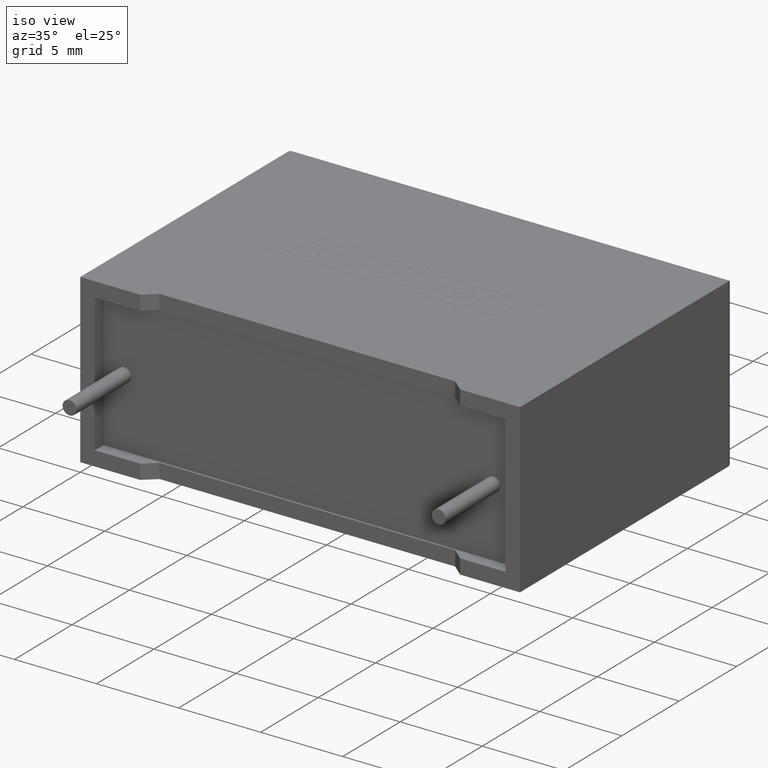
[diagram: clean part render]
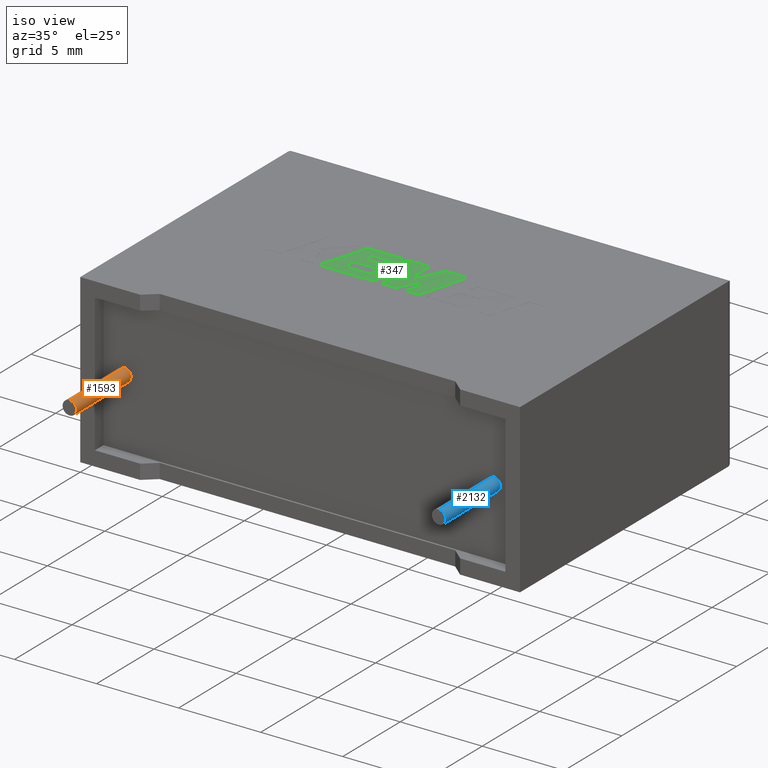
[diagram: same view with three faces highlighted in distinct colors, each labeled with its STEP entity id]
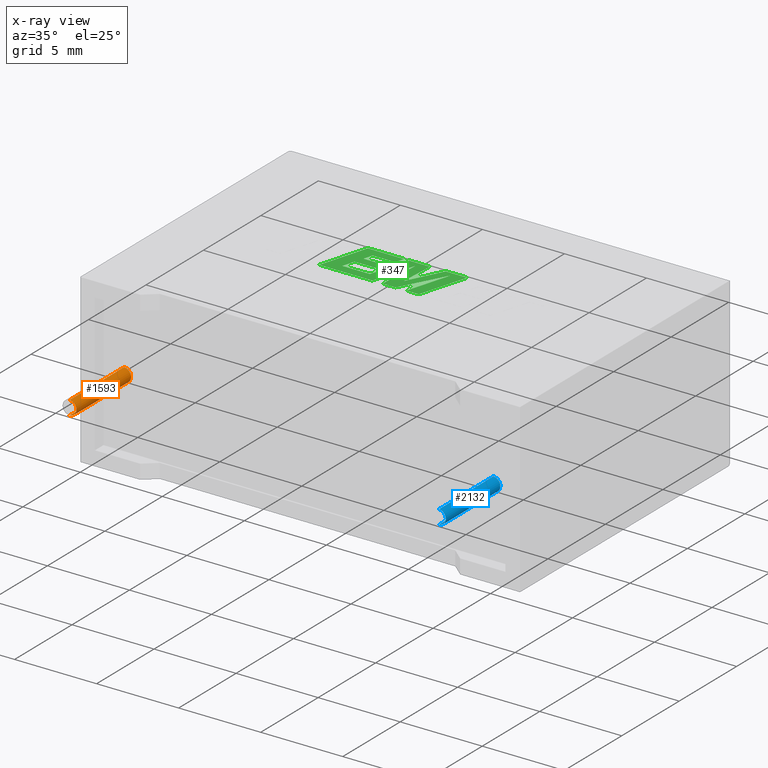
[diagram: x-ray of the same camera — body ghosted, the three highlighted faces saturated]
A machine part, iso view with three faces highlighted in distinct colors.
The next image is the same camera in x-ray (body ghosted, the three faces saturated) — at least one of them is partly hidden behind the body in this view.
Their STEP definitions:

[orange] entity #1593 — the highlighted cylindrical surface (edge-blend (fillet) strip) has radius 0.425 mm, axis along (-0, 1, -0).
#33 = DIRECTION ( 'NONE',  ( 0.000000000000000000, -1.000000000000000000, 0.000000000000000000 ) ) ;
#159 = DIRECTION ( 'NONE',  ( -0.000000000000000000, 1.000000000000000000, -0.000000000000000000 ) ) ;
#412 = ORIENTED_EDGE ( 'NONE', *, *, #3022, .F. ) ;
#452 = VERTEX_POINT ( 'NONE', #630 ) ;
#508 = FACE_OUTER_BOUND ( 'NONE', #2906, .T. ) ;
#549 = VECTOR ( 'NONE', #159, 1000.000000000000000 ) ;
#630 = CARTESIAN_POINT ( 'NONE',  ( 2.150000000000000799, -4.000000000000000000, 5.524999999999999467 ) ) ;
#723 = DIRECTION ( 'NONE',  ( 0.000000000000000000, 0.000000000000000000, 1.000000000000000000 ) ) ;
#1239 = AXIS2_PLACEMENT_3D ( 'NONE', #2360, #1356, #3040 ) ;
#1305 = CARTESIAN_POINT ( 'NONE',  ( 2.150000000000000799, -4.000000000000000000, 4.674999999999999822 ) ) ;
#1356 = DIRECTION ( 'NONE',  ( 0.000000000000000000, -1.000000000000000000, 0.000000000000000000 ) ) ;
#1424 = EDGE_CURVE ( 'NONE', #1831, #452, #2837, .T. ) ;
#1459 = DIRECTION ( 'NONE',  ( -0.000000000000000000, 1.000000000000000000, -0.000000000000000000 ) ) ;
#1593 = ADVANCED_FACE ( 'NONE', ( #508 ), #1939, .T. ) ;
#1703 = CARTESIAN_POINT ( 'NONE',  ( 2.150000000000000799, -4.000000000000000000, 5.099999999999999645 ) ) ;
#1704 = LINE ( 'NONE', #2873, #2448 ) ;
#1829 = CARTESIAN_POINT ( 'NONE',  ( 2.150000000000000799, 0.7500000000000000000, 5.524999999999999467 ) ) ;
#1831 = VERTEX_POINT ( 'NONE', #1305 ) ;
#1884 = VERTEX_POINT ( 'NONE', #1829 ) ;
#1911 = DIRECTION ( 'NONE',  ( -0.000000000000000000, 1.000000000000000000, -0.000000000000000000 ) ) ;
#1939 = CYLINDRICAL_SURFACE ( 'NONE', #2942, 0.4250000000000000444 ) ;
#2118 = CARTESIAN_POINT ( 'NONE',  ( 2.150000000000000799, 0.7500000000000000000, 4.674999999999999822 ) ) ;
#2157 = AXIS2_PLACEMENT_3D ( 'NONE', #2369, #33, #2622 ) ;
#2213 = ORIENTED_EDGE ( 'NONE', *, *, #1424, .F. ) ;
#2273 = ORIENTED_EDGE ( 'NONE', *, *, #2640, .T. ) ;
#2322 = EDGE_CURVE ( 'NONE', #1831, #2651, #1704, .T. ) ;
#2331 = CARTESIAN_POINT ( 'NONE',  ( 2.150000000000000799, -4.000000000000000000, 5.524999999999999467 ) ) ;
#2360 = CARTESIAN_POINT ( 'NONE',  ( 2.150000000000000799, -4.000000000000000000, 5.099999999999999645 ) ) ;
#2369 = CARTESIAN_POINT ( 'NONE',  ( 2.150000000000000799, 0.7500000000000000000, 5.099999999999999645 ) ) ;
#2448 = VECTOR ( 'NONE', #1459, 1000.000000000000000 ) ;
#2622 = DIRECTION ( 'NONE',  ( 0.000000000000000000, 0.000000000000000000, -1.000000000000000000 ) ) ;
#2640 = EDGE_CURVE ( 'NONE', #2651, #1884, #2896, .T. ) ;
#2651 = VERTEX_POINT ( 'NONE', #2118 ) ;
#2772 = ORIENTED_EDGE ( 'NONE', *, *, #2322, .T. ) ;
#2809 = LINE ( 'NONE', #2331, #549 ) ;
#2837 = CIRCLE ( 'NONE', #1239, 0.4250000000000000444 ) ;
#2873 = CARTESIAN_POINT ( 'NONE',  ( 2.150000000000000799, -4.000000000000000000, 4.674999999999999822 ) ) ;
#2896 = CIRCLE ( 'NONE', #2157, 0.4250000000000000444 ) ;
#2906 = EDGE_LOOP ( 'NONE', ( #2213, #2772, #2273, #412 ) ) ;
#2942 = AXIS2_PLACEMENT_3D ( 'NONE', #1703, #1911, #723 ) ;
#3022 = EDGE_CURVE ( 'NONE', #452, #1884, #2809, .T. ) ;
#3040 = DIRECTION ( 'NONE',  ( 0.000000000000000000, 0.000000000000000000, -1.000000000000000000 ) ) ;

[blue] entity #2132 — the highlighted cylindrical surface (edge-blend (fillet) strip) has radius 0.425 mm, axis along (-0, 1, -0).
#22 = DIRECTION ( 'NONE',  ( 0.000000000000000000, -1.000000000000000000, -0.000000000000000000 ) ) ;
#110 = FACE_OUTER_BOUND ( 'NONE', #504, .T. ) ;
#113 = DIRECTION ( 'NONE',  ( 0.000000000000000000, 0.000000000000000000, -1.000000000000000000 ) ) ;
#131 = CARTESIAN_POINT ( 'NONE',  ( 24.64999999999999858, -4.000000000000000000, 4.674999999999999822 ) ) ;
#185 = ORIENTED_EDGE ( 'NONE', *, *, #1785, .F. ) ;
#230 = EDGE_CURVE ( 'NONE', #1982, #2728, #2500, .T. ) ;
#319 = AXIS2_PLACEMENT_3D ( 'NONE', #2972, #380, #334 ) ;
#334 = DIRECTION ( 'NONE',  ( 0.000000000000000000, 0.000000000000000000, 1.000000000000000000 ) ) ;
#380 = DIRECTION ( 'NONE',  ( -0.000000000000000000, 1.000000000000000000, -0.000000000000000000 ) ) ;
#404 = EDGE_CURVE ( 'NONE', #1754, #1982, #1859, .T. ) ;
#438 = CARTESIAN_POINT ( 'NONE',  ( 24.64999999999999858, -4.000000000000000000, 4.674999999999999822 ) ) ;
#504 = EDGE_LOOP ( 'NONE', ( #575, #818, #1268, #185 ) ) ;
#533 = CARTESIAN_POINT ( 'NONE',  ( 24.64999999999999858, 0.7499999999999997780, 5.524999999999999467 ) ) ;
#542 = CARTESIAN_POINT ( 'NONE',  ( 24.64999999999999858, -4.000000000000000000, 5.524999999999999467 ) ) ;
#575 = ORIENTED_EDGE ( 'NONE', *, *, #1254, .T. ) ;
#590 = LINE ( 'NONE', #1520, #1344 ) ;
#680 = DIRECTION ( 'NONE',  ( -0.000000000000000000, 1.000000000000000000, -0.000000000000000000 ) ) ;
#818 = ORIENTED_EDGE ( 'NONE', *, *, #404, .T. ) ;
#1178 = DIRECTION ( 'NONE',  ( 0.000000000000000000, 0.000000000000000000, -1.000000000000000000 ) ) ;
#1187 = AXIS2_PLACEMENT_3D ( 'NONE', #1757, #1257, #113 ) ;
#1233 = VERTEX_POINT ( 'NONE', #542 ) ;
#1254 = EDGE_CURVE ( 'NONE', #1233, #1754, #2740, .T. ) ;
#1257 = DIRECTION ( 'NONE',  ( -0.000000000000000000, 1.000000000000000000, -0.000000000000000000 ) ) ;
#1268 = ORIENTED_EDGE ( 'NONE', *, *, #230, .T. ) ;
#1344 = VECTOR ( 'NONE', #1981, 1000.000000000000000 ) ;
#1520 = CARTESIAN_POINT ( 'NONE',  ( 24.64999999999999858, -4.000000000000000000, 5.524999999999999467 ) ) ;
#1591 = AXIS2_PLACEMENT_3D ( 'NONE', #1670, #22, #1178 ) ;
#1670 = CARTESIAN_POINT ( 'NONE',  ( 24.64999999999999858, 0.7499999999999997780, 5.099999999999999645 ) ) ;
#1671 = CARTESIAN_POINT ( 'NONE',  ( 24.64999999999999858, 0.7499999999999997780, 4.674999999999999822 ) ) ;
#1754 = VERTEX_POINT ( 'NONE', #131 ) ;
#1757 = CARTESIAN_POINT ( 'NONE',  ( 24.64999999999999858, -4.000000000000000000, 5.099999999999999645 ) ) ;
#1785 = EDGE_CURVE ( 'NONE', #1233, #2728, #590, .T. ) ;
#1859 = LINE ( 'NONE', #438, #2952 ) ;
#1981 = DIRECTION ( 'NONE',  ( -0.000000000000000000, 1.000000000000000000, -0.000000000000000000 ) ) ;
#1982 = VERTEX_POINT ( 'NONE', #1671 ) ;
#2132 = ADVANCED_FACE ( 'NONE', ( #110 ), #2507, .T. ) ;
#2500 = CIRCLE ( 'NONE', #1591, 0.4250000000000000444 ) ;
#2507 = CYLINDRICAL_SURFACE ( 'NONE', #319, 0.4250000000000000444 ) ;
#2728 = VERTEX_POINT ( 'NONE', #533 ) ;
#2740 = CIRCLE ( 'NONE', #1187, 0.4250000000000000444 ) ;
#2952 = VECTOR ( 'NONE', #680, 1000.000000000000000 ) ;
#2972 = CARTESIAN_POINT ( 'NONE',  ( 24.64999999999999858, -4.000000000000000000, 5.099999999999999645 ) ) ;

[green] entity #347 — the highlighted planar face has unit normal (0, 0, -1).
#14 = DIRECTION ( 'NONE',  ( 0.2740217765954066076, 0.9617234872620595842, 0.000000000000000000 ) ) ;
#31 = EDGE_CURVE ( 'NONE', #1238, #912, #2625, .T. ) ;
#36 = DIRECTION ( 'NONE',  ( 1.000000000000000000, 0.000000000000000000, 0.000000000000000000 ) ) ;
#50 = CARTESIAN_POINT ( 'NONE',  ( 8.961130512319888552, 8.003579999999905326, 10.20499999999999829 ) ) ;
#61 = CARTESIAN_POINT ( 'NONE',  ( 12.34199675988504730, 11.00540514629475375, 10.20499999999999829 ) ) ;
#72 = AXIS2_PLACEMENT_3D ( 'NONE', #2736, #1355, #861 ) ;
#101 = CARTESIAN_POINT ( 'NONE',  ( 11.64331543556821558, 8.574679054996249050, 10.20499999999999829 ) ) ;
#109 = VERTEX_POINT ( 'NONE', #2586 ) ;
#125 = LINE ( 'NONE', #1501, #213 ) ;
#169 = DIRECTION ( 'NONE',  ( 1.000000000000000000, 0.000000000000000000, 0.000000000000000000 ) ) ;
#177 = EDGE_CURVE ( 'NONE', #2766, #2807, #713, .T. ) ;
#186 = VERTEX_POINT ( 'NONE', #1560 ) ;
#194 = CARTESIAN_POINT ( 'NONE',  ( 15.03040653937304505, 10.68889560609894573, 10.20499999999999829 ) ) ;
#202 = ORIENTED_EDGE ( 'NONE', *, *, #2989, .T. ) ;
#213 = VECTOR ( 'NONE', #1283, 1000.000000000000000 ) ;
#215 = EDGE_CURVE ( 'NONE', #2776, #2765, #2670, .T. ) ;
#240 = ORIENTED_EDGE ( 'NONE', *, *, #718, .T. ) ;
#241 = ORIENTED_EDGE ( 'NONE', *, *, #431, .T. ) ;
#251 = LINE ( 'NONE', #3058, #989 ) ;
#266 = EDGE_CURVE ( 'NONE', #2765, #2347, #484, .T. ) ;
#289 = EDGE_LOOP ( 'NONE', ( #1510, #1583, #2729, #566, #796, #1326, #865, #1064, #202, #241, #2271, #400, #1269, #240, #2204, #3046, #1724, #1780, #2973, #1008, #2165, #2931, #314 ) ) ;
#290 = CARTESIAN_POINT ( 'NONE',  ( 12.34199675988504730, 11.00540514629475375, 10.20499999999999829 ) ) ;
#291 = VERTEX_POINT ( 'NONE', #1778 ) ;
#305 = EDGE_CURVE ( 'NONE', #1613, #2776, #125, .T. ) ;
#308 = VECTOR ( 'NONE', #2328, 1000.000000000000114 ) ;
#309 = CARTESIAN_POINT ( 'NONE',  ( 9.979269517209649720, 8.574679054996249050, 10.20499999999999829 ) ) ;
#314 = ORIENTED_EDGE ( 'NONE', *, *, #2762, .T. ) ;
#347 = ADVANCED_FACE ( 'NONE', ( #2024 ), #829, .F. ) ;
#352 = DIRECTION ( 'NONE',  ( -1.000000000000000000, 0.000000000000000000, 0.000000000000000000 ) ) ;
#400 = ORIENTED_EDGE ( 'NONE', *, *, #177, .T. ) ;
#402 = CARTESIAN_POINT ( 'NONE',  ( 12.96235618644490195, 10.67602602535488643, 10.20499999999999829 ) ) ;
#424 = CARTESIAN_POINT ( 'NONE',  ( 11.63858746193968052, 9.875684140488568019, 10.20499999999999829 ) ) ;
#431 = EDGE_CURVE ( 'NONE', #1686, #1900, #2516, .T. ) ;
#460 = CARTESIAN_POINT ( 'NONE',  ( 14.56854915550671947, 11.00540514629475375, 10.20499999999999829 ) ) ;
#479 = CARTESIAN_POINT ( 'NONE',  ( 14.25927221365804520, 8.003579999999905326, 10.20499999999999829 ) ) ;
#484 = LINE ( 'NONE', #958, #2889 ) ;
#496 = EDGE_CURVE ( 'NONE', #2170, #859, #3003, .T. ) ;
#513 = VECTOR ( 'NONE', #1141, 1000.000000000000227 ) ;
#531 = CARTESIAN_POINT ( 'NONE',  ( 11.48008168937758633, 9.320749644015066337, 10.20499999999999829 ) ) ;
#547 = LINE ( 'NONE', #2967, #1430 ) ;
#555 = CARTESIAN_POINT ( 'NONE',  ( 13.61281765606143068, 8.003579999999905326, 10.20499999999999829 ) ) ;
#566 = ORIENTED_EDGE ( 'NONE', *, *, #305, .T. ) ;
#582 = CARTESIAN_POINT ( 'NONE',  ( 12.04258276915566661, 11.00540514629475375, 10.20499999999999829 ) ) ;
#586 = LINE ( 'NONE', #780, #851 ) ;
#607 = VECTOR ( 'NONE', #1529, 1000.000000000000000 ) ;
#616 = VERTEX_POINT ( 'NONE', #50 ) ;
#641 = DIRECTION ( 'NONE',  ( -1.000000000000000000, 0.000000000000000000, 0.000000000000000000 ) ) ;
#662 = VERTEX_POINT ( 'NONE', #1987 ) ;
#666 = CARTESIAN_POINT ( 'NONE',  ( 12.81255791745697081, 8.003579999999905326, 10.20499999999999829 ) ) ;
#696 = DIRECTION ( 'NONE',  ( 1.000000000000000000, 0.000000000000000000, 0.000000000000000000 ) ) ;
#712 = VECTOR ( 'NONE', #1226, 1000.000000000000114 ) ;
#713 = LINE ( 'NONE', #2617, #607 ) ;
#718 = EDGE_CURVE ( 'NONE', #291, #1915, #809, .T. ) ;
#725 = DIRECTION ( 'NONE',  ( -0.2762517575166416051, -0.9610853065513833560, 0.000000000000000000 ) ) ;
#780 = CARTESIAN_POINT ( 'NONE',  ( 14.56854915550671947, 11.00540514629475375, 10.20499999999999829 ) ) ;
#791 = DIRECTION ( 'NONE',  ( 0.2759782365590697228, 0.9611638845408966292, 0.000000000000000000 ) ) ;
#793 = VECTOR ( 'NONE', #696, 1000.000000000000000 ) ;
#796 = ORIENTED_EDGE ( 'NONE', *, *, #215, .T. ) ;
#808 = LINE ( 'NONE', #2486, #712 ) ;
#809 = LINE ( 'NONE', #582, #2257 ) ;
#825 = CARTESIAN_POINT ( 'NONE',  ( 11.63858746193968052, 9.875684140488568019, 10.20499999999999829 ) ) ;
#829 = PLANE ( 'NONE',  #72 ) ;
#851 = VECTOR ( 'NONE', #1272, 999.9999999999998863 ) ;
#859 = VERTEX_POINT ( 'NONE', #1392 ) ;
#861 = DIRECTION ( 'NONE',  ( -1.000000000000000000, 0.000000000000000000, 0.000000000000000000 ) ) ;
#865 = ORIENTED_EDGE ( 'NONE', *, *, #2616, .T. ) ;
#874 = VERTEX_POINT ( 'NONE', #460 ) ;
#886 = DIRECTION ( 'NONE',  ( -0.05596501978069368805, -0.9984327301130239141, 0.000000000000000000 ) ) ;
#912 = VERTEX_POINT ( 'NONE', #531 ) ;
#915 = LINE ( 'NONE', #1131, #2544 ) ;
#958 = CARTESIAN_POINT ( 'NONE',  ( 11.64331543556821558, 8.574679054996249050, 10.20499999999999829 ) ) ;
#989 = VECTOR ( 'NONE', #2835, 1000.000000000000000 ) ;
#991 = VERTEX_POINT ( 'NONE', #2761 ) ;
#999 = VECTOR ( 'NONE', #36, 1000.000000000000000 ) ;
#1008 = ORIENTED_EDGE ( 'NONE', *, *, #2160, .T. ) ;
#1021 = DIRECTION ( 'NONE',  ( 0.2746459304916892830, 0.9615454294334481178, 0.000000000000000000 ) ) ;
#1048 = CARTESIAN_POINT ( 'NONE',  ( 10.51263605673751655, 10.43402314307480694, 10.20499999999999829 ) ) ;
#1064 = ORIENTED_EDGE ( 'NONE', *, *, #31, .T. ) ;
#1065 = LINE ( 'NONE', #1279, #2304 ) ;
#1112 = CARTESIAN_POINT ( 'NONE',  ( 15.88512924842836860, 11.00540514629475375, 10.20499999999999829 ) ) ;
#1131 = CARTESIAN_POINT ( 'NONE',  ( 8.961130512319888552, 8.003579999999905326, 10.20499999999999829 ) ) ;
#1141 = DIRECTION ( 'NONE',  ( -0.2760118818968580467, -0.9611542233438683525, 0.000000000000000000 ) ) ;
#1151 = CARTESIAN_POINT ( 'NONE',  ( 15.03040653937304505, 10.68889560609894573, 10.20499999999999829 ) ) ;
#1196 = VECTOR ( 'NONE', #725, 1000.000000000000114 ) ;
#1211 = EDGE_CURVE ( 'NONE', #109, #1613, #251, .T. ) ;
#1226 = DIRECTION ( 'NONE',  ( 0.2732148821746286371, 0.9619530280415482526, 0.000000000000000000 ) ) ;
#1238 = VERTEX_POINT ( 'NONE', #1945 ) ;
#1244 = VECTOR ( 'NONE', #886, 1000.000000000000114 ) ;
#1261 = VERTEX_POINT ( 'NONE', #2219 ) ;
#1269 = ORIENTED_EDGE ( 'NONE', *, *, #2703, .T. ) ;
#1272 = DIRECTION ( 'NONE',  ( -0.4443210308329519354, -0.8958676361826802825, 0.000000000000000000 ) ) ;
#1279 = CARTESIAN_POINT ( 'NONE',  ( 15.02208238501568793, 8.003579999999905326, 10.20499999999999829 ) ) ;
#1283 = DIRECTION ( 'NONE',  ( -1.000000000000000000, 0.000000000000000000, 0.000000000000000000 ) ) ;
#1323 = DIRECTION ( 'NONE',  ( -0.2765379750249962743, -0.9610029908221277006, 0.000000000000000000 ) ) ;
#1326 = ORIENTED_EDGE ( 'NONE', *, *, #266, .T. ) ;
#1355 = DIRECTION ( 'NONE',  ( 0.000000000000000000, 0.000000000000000000, -1.000000000000000000 ) ) ;
#1379 = LINE ( 'NONE', #1112, #1522 ) ;
#1392 = CARTESIAN_POINT ( 'NONE',  ( 13.61281765606143068, 8.003579999999905326, 10.20499999999999829 ) ) ;
#1401 = CARTESIAN_POINT ( 'NONE',  ( 10.19184578364829008, 9.320749644015066337, 10.20499999999999829 ) ) ;
#1430 = VECTOR ( 'NONE', #791, 1000.000000000000227 ) ;
#1465 = EDGE_CURVE ( 'NONE', #1261, #874, #1379, .T. ) ;
#1487 = EDGE_CURVE ( 'NONE', #662, #2170, #2529, .T. ) ;
#1489 = DIRECTION ( 'NONE',  ( 0.4668459304955080991, 0.8843386665637680277, 0.000000000000000000 ) ) ;
#1501 = CARTESIAN_POINT ( 'NONE',  ( 13.62036788893125916, 11.00540514629475375, 10.20499999999999829 ) ) ;
#1505 = LINE ( 'NONE', #555, #2545 ) ;
#1510 = ORIENTED_EDGE ( 'NONE', *, *, #1465, .T. ) ;
#1522 = VECTOR ( 'NONE', #641, 1000.000000000000000 ) ;
#1529 = DIRECTION ( 'NONE',  ( 1.000000000000000000, 0.000000000000000000, 0.000000000000000000 ) ) ;
#1541 = LINE ( 'NONE', #2974, #1642 ) ;
#1544 = EDGE_CURVE ( 'NONE', #1900, #2766, #2803, .T. ) ;
#1560 = CARTESIAN_POINT ( 'NONE',  ( 15.02208238501568793, 8.003579999999905326, 10.20499999999999829 ) ) ;
#1583 = ORIENTED_EDGE ( 'NONE', *, *, #2094, .T. ) ;
#1613 = VERTEX_POINT ( 'NONE', #1678 ) ;
#1642 = VECTOR ( 'NONE', #1021, 1000.000000000000114 ) ;
#1678 = CARTESIAN_POINT ( 'NONE',  ( 13.62036788893125916, 11.00540514629475375, 10.20499999999999829 ) ) ;
#1679 = EDGE_CURVE ( 'NONE', #991, #662, #547, .T. ) ;
#1686 = VERTEX_POINT ( 'NONE', #825 ) ;
#1724 = ORIENTED_EDGE ( 'NONE', *, *, #1679, .T. ) ;
#1761 = DIRECTION ( 'NONE',  ( 0.2763139702539113562, 0.9610674221107073922, 0.000000000000000000 ) ) ;
#1778 = CARTESIAN_POINT ( 'NONE',  ( 12.04258276915566661, 11.00540514629475375, 10.20499999999999829 ) ) ;
#1780 = ORIENTED_EDGE ( 'NONE', *, *, #1487, .T. ) ;
#1822 = DIRECTION ( 'NONE',  ( -1.000000000000000000, 0.000000000000000000, 0.000000000000000000 ) ) ;
#1879 = DIRECTION ( 'NONE',  ( 1.000000000000000000, 4.783739767952858963E-16, 0.000000000000000000 ) ) ;
#1888 = LINE ( 'NONE', #2177, #2258 ) ;
#1900 = VERTEX_POINT ( 'NONE', #2571 ) ;
#1901 = EDGE_CURVE ( 'NONE', #2621, #186, #2789, .T. ) ;
#1915 = VERTEX_POINT ( 'NONE', #2289 ) ;
#1945 = CARTESIAN_POINT ( 'NONE',  ( 10.19184578364829008, 9.320749644015066337, 10.20499999999999829 ) ) ;
#1960 = VERTEX_POINT ( 'NONE', #1151 ) ;
#1987 = CARTESIAN_POINT ( 'NONE',  ( 12.96235618644490195, 10.67602602535488643, 10.20499999999999829 ) ) ;
#2024 = FACE_OUTER_BOUND ( 'NONE', #289, .T. ) ;
#2064 = VECTOR ( 'NONE', #1323, 1000.000000000000227 ) ;
#2094 = EDGE_CURVE ( 'NONE', #874, #109, #586, .T. ) ;
#2102 = CARTESIAN_POINT ( 'NONE',  ( 10.35016900896583358, 9.875684140488568019, 10.20499999999999829 ) ) ;
#2113 = CARTESIAN_POINT ( 'NONE',  ( 11.88029826862837446, 10.43402314307480694, 10.20499999999999829 ) ) ;
#2160 = EDGE_CURVE ( 'NONE', #859, #1960, #1505, .T. ) ;
#2165 = ORIENTED_EDGE ( 'NONE', *, *, #2463, .T. ) ;
#2170 = VERTEX_POINT ( 'NONE', #666 ) ;
#2177 = CARTESIAN_POINT ( 'NONE',  ( 9.979269517209649720, 8.574679054996249050, 10.20499999999999829 ) ) ;
#2204 = ORIENTED_EDGE ( 'NONE', *, *, #2477, .T. ) ;
#2219 = CARTESIAN_POINT ( 'NONE',  ( 15.88512924842836860, 11.00540514629475375, 10.20499999999999829 ) ) ;
#2257 = VECTOR ( 'NONE', #352, 1000.000000000000000 ) ;
#2258 = VECTOR ( 'NONE', #14, 1000.000000000000227 ) ;
#2271 = ORIENTED_EDGE ( 'NONE', *, *, #1544, .T. ) ;
#2289 = CARTESIAN_POINT ( 'NONE',  ( 9.824934949208618207, 11.00540514629475375, 10.20499999999999829 ) ) ;
#2299 = CARTESIAN_POINT ( 'NONE',  ( 12.81255791745697081, 8.003579999999905326, 10.20499999999999829 ) ) ;
#2303 = VECTOR ( 'NONE', #169, 1000.000000000000000 ) ;
#2304 = VECTOR ( 'NONE', #1761, 1000.000000000000000 ) ;
#2328 = DIRECTION ( 'NONE',  ( 0.2793947940878294123, 0.9601763114327593884, 0.000000000000000000 ) ) ;
#2347 = VERTEX_POINT ( 'NONE', #309 ) ;
#2463 = EDGE_CURVE ( 'NONE', #1960, #2621, #2514, .T. ) ;
#2477 = EDGE_CURVE ( 'NONE', #1915, #616, #2546, .T. ) ;
#2486 = CARTESIAN_POINT ( 'NONE',  ( 11.88029826862837446, 10.43402314307480694, 10.20499999999999829 ) ) ;
#2514 = LINE ( 'NONE', #194, #513 ) ;
#2516 = LINE ( 'NONE', #424, #3000 ) ;
#2529 = LINE ( 'NONE', #402, #1244 ) ;
#2544 = VECTOR ( 'NONE', #1879, 1000.000000000000000 ) ;
#2545 = VECTOR ( 'NONE', #1489, 1000.000000000000114 ) ;
#2546 = LINE ( 'NONE', #3038, #2064 ) ;
#2571 = CARTESIAN_POINT ( 'NONE',  ( 10.35016900896583358, 9.875684140488568019, 10.20499999999999829 ) ) ;
#2586 = CARTESIAN_POINT ( 'NONE',  ( 13.50492627752647401, 8.860862693060706619, 10.20499999999999829 ) ) ;
#2616 = EDGE_CURVE ( 'NONE', #2347, #1238, #1888, .T. ) ;
#2617 = CARTESIAN_POINT ( 'NONE',  ( 10.51263605673751655, 10.43402314307480694, 10.20499999999999829 ) ) ;
#2621 = VERTEX_POINT ( 'NONE', #479 ) ;
#2625 = LINE ( 'NONE', #1401, #999 ) ;
#2628 = DIRECTION ( 'NONE',  ( -1.000000000000000000, 0.000000000000000000, 0.000000000000000000 ) ) ;
#2670 = LINE ( 'NONE', #290, #1196 ) ;
#2703 = EDGE_CURVE ( 'NONE', #2807, #291, #808, .T. ) ;
#2729 = ORIENTED_EDGE ( 'NONE', *, *, #1211, .T. ) ;
#2736 = CARTESIAN_POINT ( 'NONE',  ( -0.3258222201975293775, -1.712352143479580979, 10.20499999999999829 ) ) ;
#2761 = CARTESIAN_POINT ( 'NONE',  ( 12.19501884341827846, 8.003579999999905326, 10.20499999999999829 ) ) ;
#2762 = EDGE_CURVE ( 'NONE', #186, #1261, #1065, .T. ) ;
#2765 = VERTEX_POINT ( 'NONE', #101 ) ;
#2766 = VERTEX_POINT ( 'NONE', #1048 ) ;
#2776 = VERTEX_POINT ( 'NONE', #61 ) ;
#2789 = LINE ( 'NONE', #2834, #793 ) ;
#2803 = LINE ( 'NONE', #2102, #308 ) ;
#2807 = VERTEX_POINT ( 'NONE', #2113 ) ;
#2834 = CARTESIAN_POINT ( 'NONE',  ( 14.25927221365804520, 8.003579999999905326, 10.20499999999999829 ) ) ;
#2835 = DIRECTION ( 'NONE',  ( 0.05375259206908576670, 0.9985542843760946141, 0.000000000000000000 ) ) ;
#2889 = VECTOR ( 'NONE', #2628, 1000.000000000000000 ) ;
#2931 = ORIENTED_EDGE ( 'NONE', *, *, #1901, .T. ) ;
#2967 = CARTESIAN_POINT ( 'NONE',  ( 12.19501884341827846, 8.003579999999905326, 10.20499999999999829 ) ) ;
#2973 = ORIENTED_EDGE ( 'NONE', *, *, #496, .T. ) ;
#2974 = CARTESIAN_POINT ( 'NONE',  ( 11.48008168937758633, 9.320749644015066337, 10.20499999999999829 ) ) ;
#2989 = EDGE_CURVE ( 'NONE', #912, #1686, #1541, .T. ) ;
#3000 = VECTOR ( 'NONE', #1822, 1000.000000000000000 ) ;
#3003 = LINE ( 'NONE', #2299, #2303 ) ;
#3038 = CARTESIAN_POINT ( 'NONE',  ( 9.824934949208618207, 11.00540514629475375, 10.20499999999999829 ) ) ;
#3046 = ORIENTED_EDGE ( 'NONE', *, *, #3060, .T. ) ;
#3058 = CARTESIAN_POINT ( 'NONE',  ( 13.50492627752647401, 8.860862693060706619, 10.20499999999999829 ) ) ;
#3060 = EDGE_CURVE ( 'NONE', #616, #991, #915, .T. ) ;